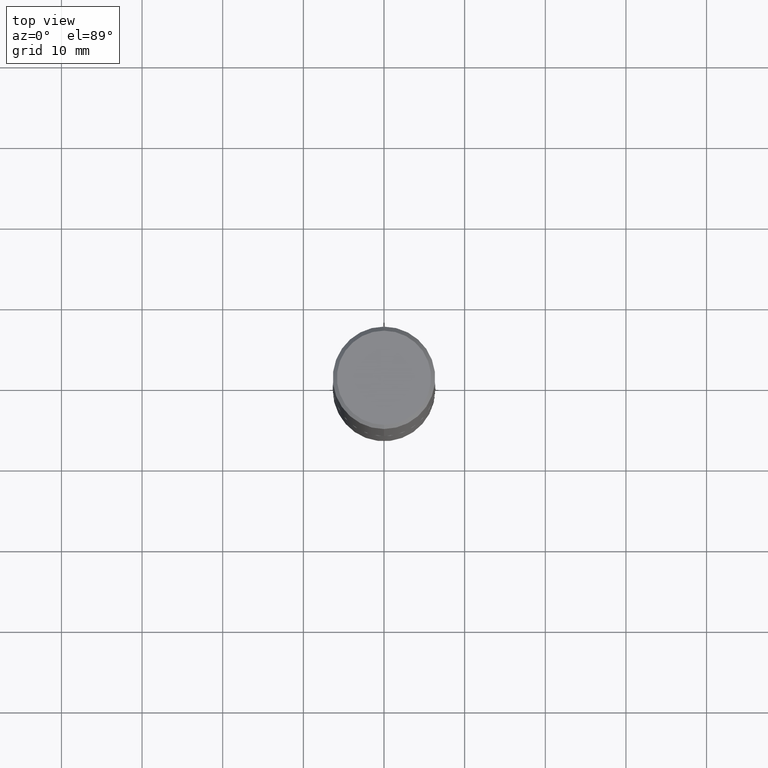
[diagram: clean part render]
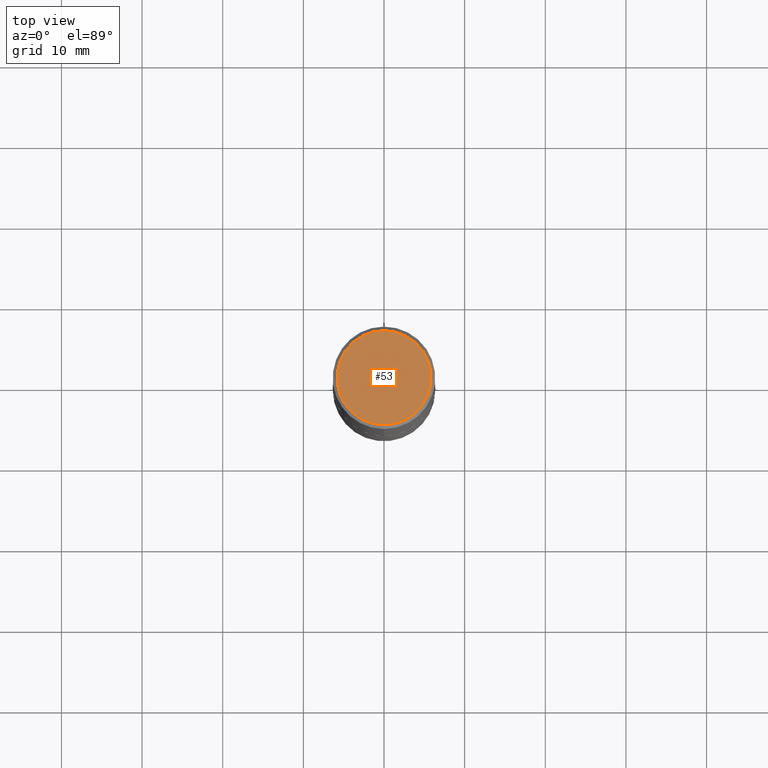
[diagram: same view with one face highlighted and labeled with its STEP entity id]
A machine part, top view. The second image highlights one B-rep face of the part: STEP entity #53.
In plain terms, the highlighted planar face has unit normal (0, -0, -1).
Its self-contained STEP definition (entity closure, byte-faithful):
#5 = VERTEX_POINT ( 'NONE', #36 ) ;
#14 = CARTESIAN_POINT ( 'NONE',  ( 1.675911042644703182E-15, 0.2299999999999997047, -4.914392961565924424E-16 ) ) ;
#25 = EDGE_LOOP ( 'NONE', ( #248, #66 ) ) ;
#33 = DIRECTION ( 'NONE',  ( -6.982962677686265922E-15, -1.000000000000000000, 3.493471632758652550E-15 ) ) ;
#36 = CARTESIAN_POINT ( 'NONE',  ( -1.646519519465166376E-15, -0.2299999999999997047, 1.115557654912385711E-15 ) ) ;
#50 = AXIS2_PLACEMENT_3D ( 'NONE', #300, #203, #239 ) ;
#53 = ADVANCED_FACE ( 'NONE', ( #54 ), #224, .F. ) ;
#54 = FACE_OUTER_BOUND ( 'NONE', #25, .T. ) ;
#66 = ORIENTED_EDGE ( 'NONE', *, *, #350, .T. ) ;
#100 = VERTEX_POINT ( 'NONE', #14 ) ;
#123 = CIRCLE ( 'NONE', #333, 0.2299999999999997047 ) ;
#178 = CIRCLE ( 'NONE', #50, 0.2299999999999997047 ) ;
#190 = CARTESIAN_POINT ( 'NONE',  ( 1.606081415867839095E-15, 0.2299999999999997047, -6.474688858455407103E-16 ) ) ;
#203 = DIRECTION ( 'NONE',  ( -2.444078991372175563E-29, 3.493471632758652550E-15, 1.000000000000000000 ) ) ;
#224 = PLANE ( 'NONE',  #322 ) ;
#239 = DIRECTION ( 'NONE',  ( -6.982962677686265922E-15, -1.000000000000000000, 3.493471632758652550E-15 ) ) ;
#245 = DIRECTION ( 'NONE',  ( 6.982962677686265922E-15, 1.000000000000000000, -3.493471632758652550E-15 ) ) ;
#246 = EDGE_CURVE ( 'NONE', #100, #5, #178, .T. ) ;
#248 = ORIENTED_EDGE ( 'NONE', *, *, #246, .T. ) ;
#259 = DIRECTION ( 'NONE',  ( -2.444078991372175563E-29, 3.493471632758652550E-15, 1.000000000000000000 ) ) ;
#300 = CARTESIAN_POINT ( 'NONE',  ( -7.626972843823584403E-45, 1.090169890898625670E-30, 3.120591793778966343E-16 ) ) ;
#322 = AXIS2_PLACEMENT_3D ( 'NONE', #190, #347, #245 ) ;
#333 = AXIS2_PLACEMENT_3D ( 'NONE', #351, #259, #33 ) ;
#347 = DIRECTION ( 'NONE',  ( 2.444078991372175283E-29, -3.493471632758652550E-15, -1.000000000000000000 ) ) ;
#350 = EDGE_CURVE ( 'NONE', #5, #100, #123, .T. ) ;
#351 = CARTESIAN_POINT ( 'NONE',  ( -7.626972843823584403E-45, 1.090169890898625670E-30, 3.120591793778966343E-16 ) ) ;